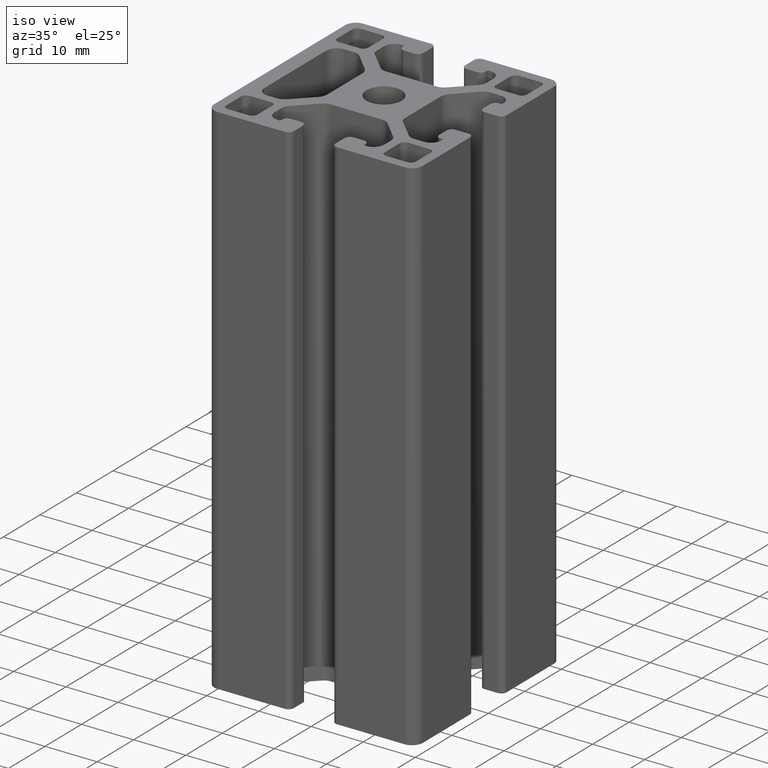
[diagram: clean part render]
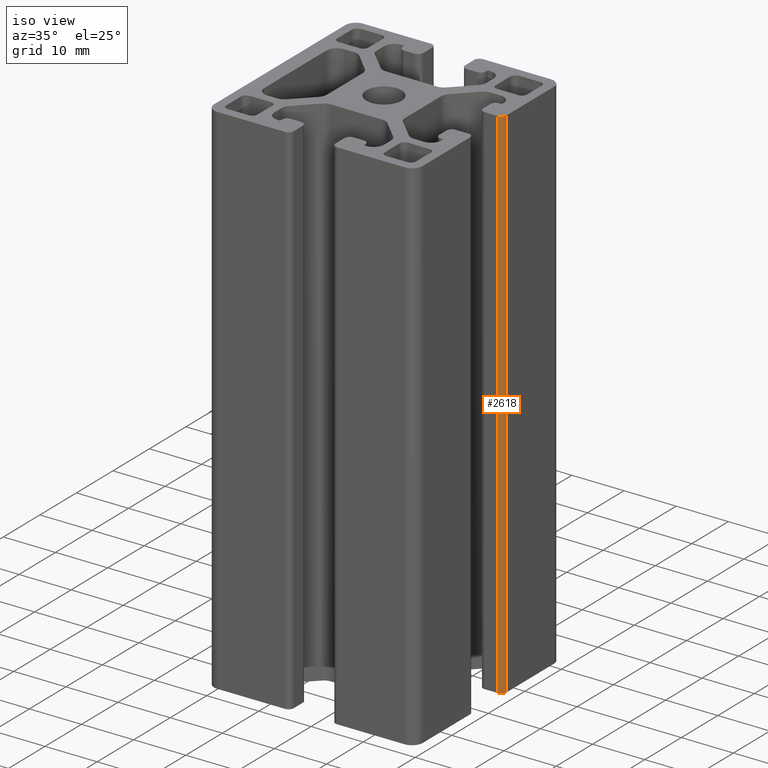
[diagram: same view with one face highlighted and labeled with its STEP entity id]
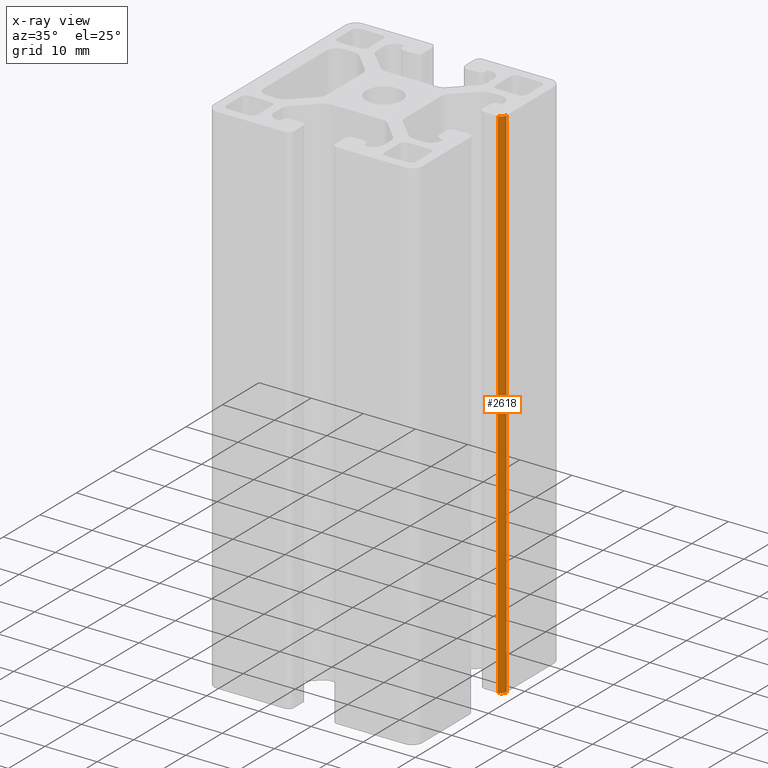
[diagram: x-ray of the same camera — body ghosted, the highlighted face saturated]
A machine part, iso view. The second image highlights one B-rep face of the part: STEP entity #2618.
The next image is the same camera in x-ray: the body ghosted, the highlighted face saturated — about 0% of this face is hidden behind the body in this view.
In plain terms, the highlighted cylindrical surface (edge-blend (fillet) strip) has radius 1 mm, axis along (0, 0, 1).
Its self-contained STEP definition (entity closure, byte-faithful):
#181=LINE('',#4222,#447);
#182=LINE('',#4225,#448);
#447=VECTOR('',#3430,100.);
#448=VECTOR('',#3433,100.);
#712=FACE_OUTER_BOUND('',#846,.T.);
#846=EDGE_LOOP('',(#2015,#2016,#2017,#2018));
#991=CIRCLE('',#2836,0.99999800405115);
#992=CIRCLE('',#2837,0.99999800405115);
#1205=VERTEX_POINT('',#4218);
#1206=VERTEX_POINT('',#4219);
#1207=VERTEX_POINT('',#4221);
#1208=VERTEX_POINT('',#4223);
#1545=EDGE_CURVE('',#1205,#1206,#991,.T.);
#1546=EDGE_CURVE('',#1207,#1205,#181,.T.);
#1547=EDGE_CURVE('',#1208,#1207,#992,.T.);
#1548=EDGE_CURVE('',#1206,#1208,#182,.T.);
#2015=ORIENTED_EDGE('',*,*,#1545,.F.);
#2016=ORIENTED_EDGE('',*,*,#1546,.F.);
#2017=ORIENTED_EDGE('',*,*,#1547,.F.);
#2018=ORIENTED_EDGE('',*,*,#1548,.F.);
#2514=CYLINDRICAL_SURFACE('',#2835,0.99999800405115);
#2618=ADVANCED_FACE('',(#712),#2514,.T.);
#2835=AXIS2_PLACEMENT_3D('',#4217,#3426,#3427);
#2836=AXIS2_PLACEMENT_3D('',#4220,#3428,#3429);
#2837=AXIS2_PLACEMENT_3D('',#4224,#3431,#3432);
#3426=DIRECTION('center_axis',(0.,0.,1.));
#3427=DIRECTION('ref_axis',(0.,1.,0.));
#3428=DIRECTION('center_axis',(0.,0.,1.));
#3429=DIRECTION('ref_axis',(0.,1.,0.));
#3430=DIRECTION('',(0.,0.,1.));
#3431=DIRECTION('center_axis',(0.,0.,-1.));
#3432=DIRECTION('ref_axis',(0.,1.,0.));
#3433=DIRECTION('',(0.,0.,-1.));
#4217=CARTESIAN_POINT('Origin',(19.0000019959489,4.99999800405114,0.));
#4218=CARTESIAN_POINT('',(19.0000019959489,3.99999999999999,100.));
#4219=CARTESIAN_POINT('',(20.,4.99999800405114,100.));
#4220=CARTESIAN_POINT('Origin',(19.0000019959489,4.99999800405114,100.));
#4221=CARTESIAN_POINT('',(19.0000019959489,3.99999999999999,0.));
#4222=CARTESIAN_POINT('',(19.0000019959489,3.99999999999999,0.));
#4223=CARTESIAN_POINT('',(20.,4.99999800405114,0.));
#4224=CARTESIAN_POINT('Origin',(19.0000019959489,4.99999800405114,0.));
#4225=CARTESIAN_POINT('',(20.,4.99999800405114,0.));